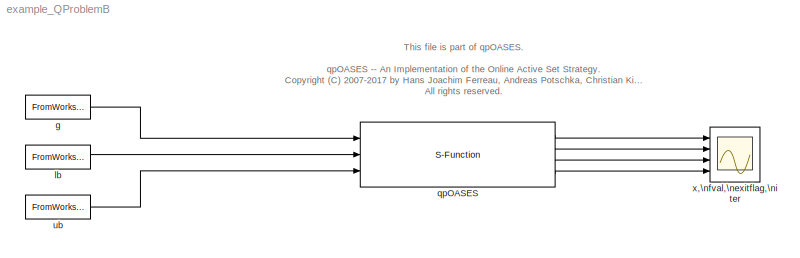
MODEL example_QProblemB
KIND model
BLOCK [FromWorkspace] g
  OutputAfterFinalValue = Holding final value
  SID = 2
  SampleTime = 0.1
  VariableName = g
  ZeroCross = on
BLOCK [FromWorkspace] lb
  OutputAfterFinalValue = Holding final value
  SID = 3
  SampleTime = 0.1
  VariableName = lb
  ZeroCross = on
BLOCK [S-Function] qpOASES
  EnableBusSupport = off
  FunctionName = qpOASES_QProblemB
  Parameters = H
  Ports = [3, 4]
  SID = 6
BLOCK [FromWorkspace] ub
  OutputAfterFinalValue = Holding final value
  SID = 4
  SampleTime = 0.1
  VariableName = ub
  ZeroCross = on
BLOCK [Scope] x,\nfval,\nexitflag,\niter
  DataFormat = StructureWithTime
  Floating = off
  NumInputPorts = 4
  Ports = [4]
  SID = 5
  SampleTime = 0
  SaveName = ScopeData1
  YMax = 5~5~5~5
  YMin = -5~-5~-5~-5
ANNOTATION (root): This file is part of qpOASES.\n\nqpOASES -- An Implementation of the Online Active Set Strategy.\nCopyright (C) 2007-2017 by Hans Joachim Ferreau, Andreas Potschka, Christian Kirches et al.\nAll rights reserved.
LINE g:1 -> qpOASES:1
LINE lb:1 -> qpOASES:2
LINE qpOASES:1 -> x,\nfval,\nexitflag,\niter:1
LINE qpOASES:2 -> x,\nfval,\nexitflag,\niter:2
LINE qpOASES:3 -> x,\nfval,\nexitflag,\niter:3
LINE qpOASES:4 -> x,\nfval,\nexitflag,\niter:4
LINE ub:1 -> qpOASES:3
